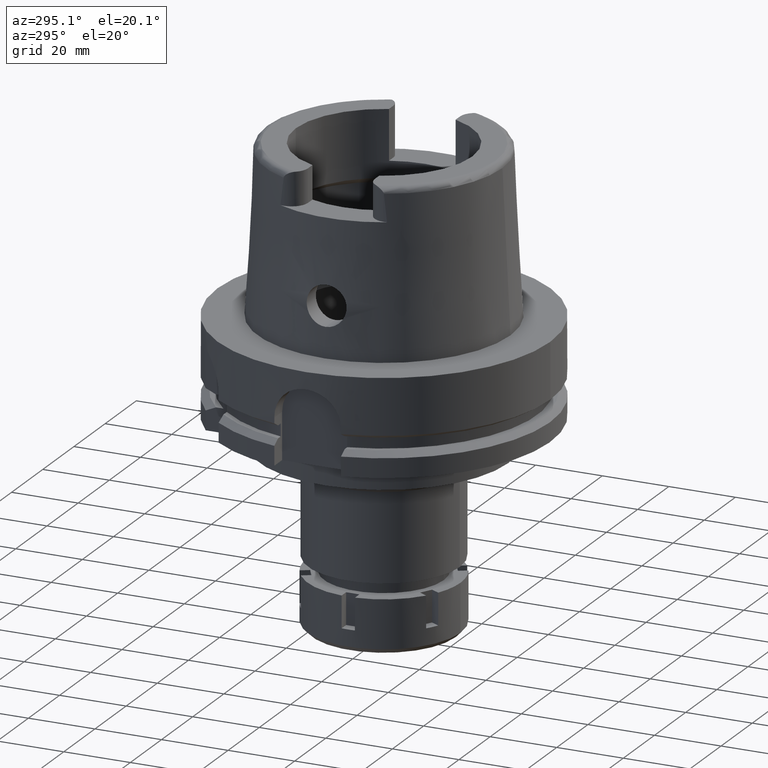
[diagram: clean part render]
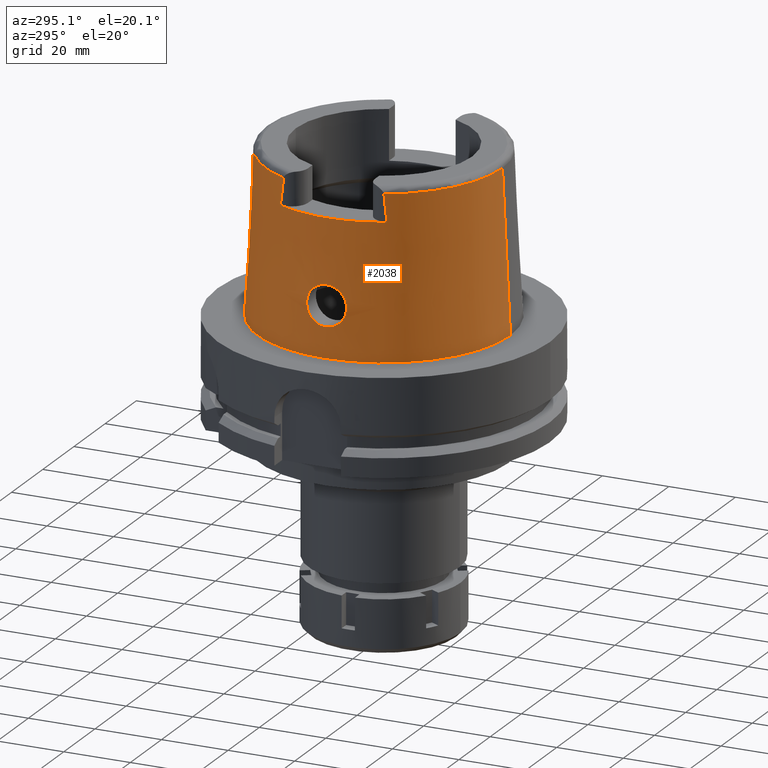
[diagram: same view with one face highlighted and labeled with its STEP entity id]
A machine part, auxiliary view. The second image highlights one B-rep face of the part: STEP entity #2038.
In plain terms, the highlighted conical surface has half-angle 2.862 deg.
Its self-contained STEP definition (entity closure, byte-faithful):
#6 = CARTESIAN_POINT ( 'NONE',  ( -36.71877591530809326, -5.556018479536274590, 17.26510443153633645 ) ) ;
#39 = CARTESIAN_POINT ( 'NONE',  ( -37.22769001349152518, -4.202483874487800364, 10.71757276452399843 ) ) ;
#45 = CARTESIAN_POINT ( 'NONE',  ( -32.24999999999000266, 15.99793480980999938, 40.00000000000000000 ) ) ;
#73 = EDGE_CURVE ( 'NONE', #1980, #1175, #1230, .T. ) ;
#105 = CARTESIAN_POINT ( 'NONE',  ( -36.71940090993184924, 5.534225256131923842, 17.31786715726130765 ) ) ;
#133 = CARTESIAN_POINT ( 'NONE',  ( -36.80220034301677146, 4.120520436186791535, 19.36182650419087992 ) ) ;
#140 = EDGE_CURVE ( 'NONE', #1175, #1980, #5866, .T. ) ;
#166 = CARTESIAN_POINT ( 'NONE',  ( -36.85061446757075743, 3.323974769132514773, 19.99513187085343091 ) ) ;
#193 = CARTESIAN_POINT ( 'NONE',  ( -36.94215372555600396, 5.576661568308895589, 12.78614643219742142 ) ) ;
#219 = CARTESIAN_POINT ( 'NONE',  ( -36.71950530839042415, 5.530809660569642183, 17.32599642025721920 ) ) ;
#240 = CARTESIAN_POINT ( 'NONE',  ( -32.25000136840999687, 15.06443226364999965, 48.09991937821000363 ) ) ;
#249 = CARTESIAN_POINT ( 'NONE',  ( -37.01637978225305403, 5.287016351401201852, 12.16149166901215928 ) ) ;
#311 = CARTESIAN_POINT ( 'NONE',  ( -37.07128758506892297, 5.042171245306825256, 11.74781501929762584 ) ) ;
#345 = CARTESIAN_POINT ( 'NONE',  ( -37.31794597881081188, 3.612345557539282659, 10.19261230537456697 ) ) ;
#362 = EDGE_CURVE ( 'NONE', #1772, #2857, #4245, .T. ) ;
#376 = CARTESIAN_POINT ( 'NONE',  ( -37.04596361758719780, 5.158063539129197572, 11.93451700471799981 ) ) ;
#409 = CARTESIAN_POINT ( 'NONE',  ( -37.22599246841644316, -4.212936030671541765, 10.72785490134685205 ) ) ;
#435 = CARTESIAN_POINT ( 'NONE',  ( -36.76666022327953698, -5.999757555611351378, 14.94147197359077772 ) ) ;
#467 = CARTESIAN_POINT ( 'NONE',  ( -36.71805141915527315, -5.584094119582716509, 17.19522082418419373 ) ) ;
#497 = CARTESIAN_POINT ( 'NONE',  ( -36.81081821775555341, -3.980731981830091470, 19.49363295382309502 ) ) ;
#518 = CIRCLE ( 'NONE', #1125, 35.59494289391000166 ) ;
#524 = CARTESIAN_POINT ( 'NONE',  ( -36.76836078311219325, -4.640621917574239141, 18.80473310482546268 ) ) ;
#532 = CARTESIAN_POINT ( 'NONE',  ( -36.94595053172387367, 0.7392507761614157680, 20.96716880237240233 ) ) ;
#537 = EDGE_CURVE ( 'NONE', #928, #558, #2404, .T. ) ;
#558 = VERTEX_POINT ( 'NONE', #5274 ) ;
#560 = CARTESIAN_POINT ( 'NONE',  ( -36.93364185750331075, -1.521987419331389590, 20.86575521343720752 ) ) ;
#568 = CARTESIAN_POINT ( 'NONE',  ( -36.90335691258076878, 2.249091460713585011, 20.56254351953722193 ) ) ;
#584 = VECTOR ( 'NONE', #1356, 1000.000000000000227 ) ;
#597 = CARTESIAN_POINT ( 'NONE',  ( -36.92881781482282122, 1.511081217388786202, 20.81016492526160278 ) ) ;
#625 = CARTESIAN_POINT ( 'NONE',  ( -36.92045113884029206, 5.652672191472771779, 12.98754703251336728 ) ) ;
#656 = CARTESIAN_POINT ( 'NONE',  ( -36.72222499115520833, 5.452408707580252312, 17.50463453709382478 ) ) ;
#681 = CARTESIAN_POINT ( 'NONE',  ( -36.86754109588863315, -3.025826857960945748, 20.18496277906425718 ) ) ;
#688 = CARTESIAN_POINT ( 'NONE',  ( -36.91974755293403376, 1.803626780359447457, 20.72339725715780645 ) ) ;
#718 = CARTESIAN_POINT ( 'NONE',  ( -37.45621620133924523, 2.303575478182027680, 9.459810158579950112 ) ) ;
#749 = CARTESIAN_POINT ( 'NONE',  ( -37.48380483905778959, -1.941892671585959462, 9.321388531534887889 ) ) ;
#781 = CARTESIAN_POINT ( 'NONE',  ( -37.55000165825000380, 1.571614468376999917E-13, 9.000000000000000000 ) ) ;
#815 = CARTESIAN_POINT ( 'NONE',  ( -37.51963179138046200, -1.323757406867826836, 9.144631324572170428 ) ) ;
#831 = FACE_OUTER_BOUND ( 'NONE', #2781, .T. ) ;
#881 = CARTESIAN_POINT ( 'NONE',  ( -37.20168319516631072, -4.361810434371832024, 10.87536770455288604 ) ) ;
#913 = CARTESIAN_POINT ( 'NONE',  ( -37.28862742251199336, -3.801792891795896967, 10.35693965760819601 ) ) ;
#928 = VERTEX_POINT ( 'NONE', #5611 ) ;
#942 = CARTESIAN_POINT ( 'NONE',  ( -36.82363111639052988, -5.928074679737712849, 14.05293152788056332 ) ) ;
#971 = CARTESIAN_POINT ( 'NONE',  ( -36.78356802939993742, -4.404063719291655410, 19.07551879910860038 ) ) ;
#1003 = CARTESIAN_POINT ( 'NONE',  ( -37.13309089327508161, -4.742405687941488424, 11.31929760391992090 ) ) ;
#1010 = CARTESIAN_POINT ( 'NONE',  ( -32.24999876011999334, -15.99794043148000000, 40.00000000000000000 ) ) ;
#1041 = CARTESIAN_POINT ( 'NONE',  ( -36.88795973163654196, 2.606477671416162156, 20.40788284496053251 ) ) ;
#1075 = CARTESIAN_POINT ( 'NONE',  ( -36.75772270391036756, 5.998830808039315343, 15.12079816113778641 ) ) ;
#1101 = CARTESIAN_POINT ( 'NONE',  ( -36.90530372639234713, 5.703403103098229288, 13.13402238867908167 ) ) ;
#1125 = AXIS2_PLACEMENT_3D ( 'NONE', #1419, #3315, #2859 ) ;
#1131 = CARTESIAN_POINT ( 'NONE',  ( -36.90844121953796275, 2.121042726762362829, 20.61301729786069004 ) ) ;
#1160 = CARTESIAN_POINT ( 'NONE',  ( -36.73755001196761327, 5.133457173154321929, 18.11219717281846542 ) ) ;
#1172 = CARTESIAN_POINT ( 'NONE',  ( 0.0000000000000000000, 35.59494289391000166, 48.09987853799000135 ) ) ;
#1175 = VERTEX_POINT ( 'NONE', #6108 ) ;
#1180 = DIRECTION ( 'NONE',  ( 0.0000000000000000000, 0.0000000000000000000, -1.000000000000000000 ) ) ;
#1187 = CARTESIAN_POINT ( 'NONE',  ( -37.07641983153887111, 5.018085826717578968, 11.71078039413635530 ) ) ;
#1214 = CARTESIAN_POINT ( 'NONE',  ( 0.0000000000000000000, 0.0000000000000000000, 48.09987853799000135 ) ) ;
#1218 = ORIENTED_EDGE ( 'NONE', *, *, #362, .T. ) ;
#1219 = CARTESIAN_POINT ( 'NONE',  ( -37.54240919153262013, -0.7519272171428393881, 9.034657641862015254 ) ) ;
#1230 = B_SPLINE_CURVE_WITH_KNOTS ( 'NONE', 3,
 ( #3817, #5260, #532, #2455, #597, #688, #2485, #1131, #1540, #568, #4396, #2045, #3933, #3436, #1041, #1635, #5878, #3405, #2013, #2541, #2571, #3500, #166, #4426, #4863, #3469, #3902, #133, #5817, #2107, #4833, #2078, #3028, #3001, #1160, #3058, #5352, #4944, #656, #4370, #3527, #2515, #219, #105, #5322, #5382, #3963, #5785, #2975, #5850, #2132, #1075, #2596, #4920, #5412, #1575, #4889, #4482, #4455, #1101, #625, #5904, #1608, #193, #4025, #5291, #3994, #2945, #1798, #249, #6000, #376, #2761, #5439, #311, #5499, #1187, #2226, #6037, #3089, #4054, #2692, #3118, #1730, #2164, #2662, #4546, #345, #4974, #4577, #5534, #1255, #5565, #1316, #3618, #3215, #5067, #718, #4157, #1698, #3155 ),
 .UNSPECIFIED., .F., .F.,
 ( 4, 2, 2, 1, 1, 1, 1, 2, 2, 2, 2, 1, 1, 2, 2, 2, 1, 1, 1, 2, 2, 2, 2, 2, 1, 1, 2, 2, 2, 2, 1, 1, 2, 2, 2, 2, 2, 1, 1, 1, 2, 2, 2, 2, 1, 1, 2, 2, 2, 1, 1, 1, 2, 2, 2, 2, 2, 1, 1, 2, 2, 4 ),
 ( 0.0000000000000000000, 0.06249999999999100719, 0.09374999999998649691, 0.1093749999999842487, 0.1171874999999831662, 0.1210937499999826389, 0.1230468749999822503, 0.1240234374999820144, 0.1249999999999817785, 0.1562499999999727718, 0.1718749999999683864, 0.1796874999999663325, 0.1835937499999654166, 0.1855468749999651112, 0.1874999999999648059, 0.2187499999999592271, 0.2343749999999563405, 0.2421874999999547307, 0.2460937499999539813, 0.2480468749999536759, 0.2499999999999533706, 0.3124999999999402145, 0.3437499999999336087, 0.3593749999999303335, 0.3671874999999288347, 0.3710937499999281131, 0.3730468749999280575, 0.3749999999999280020, 0.4374999999999288347, 0.4687499999999295008, 0.4843749999999298894, 0.4921874999999301670, 0.4960937499999303335, 0.4999999999999305000, 0.5624999999999339417, 0.5937499999999358291, 0.6093749999999367173, 0.6171874999999371614, 0.6210937499999374944, 0.6230468749999377165, 0.6240234374999377165, 0.6249999999999378275, 0.6562499999999428235, 0.6718749999999453770, 0.6796874999999467093, 0.6835937499999473754, 0.6855468749999478195, 0.6874999999999481526, 0.7187499999999557021, 0.7343749999999594769, 0.7421874999999613642, 0.7460937499999623634, 0.7480468749999629186, 0.7499999999999633626, 0.8124999999999730216, 0.8437499999999776845, 0.8593749999999801270, 0.8671874999999812372, 0.8710937499999817923, 0.8730468749999822364, 0.8749999999999825695, 1.000000000000000000 ),
 .UNSPECIFIED. ) ;
#1247 = CARTESIAN_POINT ( 'NONE',  ( 0.0000000000000000000, 0.0000000000000000000, 40.00000000000000000 ) ) ;
#1255 = CARTESIAN_POINT ( 'NONE',  ( -37.42898963835768456, 2.613640524911335028, 9.598437071932590214 ) ) ;
#1285 = CARTESIAN_POINT ( 'NONE',  ( -37.55000165825001091, -0.3717897913749180772, 8.999999999999991118 ) ) ;
#1316 = CARTESIAN_POINT ( 'NONE',  ( -37.44542732564330834, 2.431495883758649779, 9.514457085874241216 ) ) ;
#1318 = EDGE_CURVE ( 'NONE', #1817, #4762, #518, .T. ) ;
#1355 = CARTESIAN_POINT ( 'NONE',  ( -37.17892230854425861, -4.493551449338728077, 11.01929940718028611 ) ) ;
#1356 = DIRECTION ( 'NONE',  ( -5.154182075159067383E-05, 0.04993927430816067631, -0.9987522546783135224 ) ) ;
#1384 = CARTESIAN_POINT ( 'NONE',  ( -37.25742475283490052, -4.013357196009274652, 10.53949088016138624 ) ) ;
#1399 = EDGE_CURVE ( 'NONE', #1817, #2857, #2480, .T. ) ;
#1415 = CARTESIAN_POINT ( 'NONE',  ( -37.27643627799846371, -3.886585924757955279, 10.42756517671766758 ) ) ;
#1419 = CARTESIAN_POINT ( 'NONE',  ( 0.0000000000000000000, 0.0000000000000000000, 48.09987853799000135 ) ) ;
#1441 = CARTESIAN_POINT ( 'NONE',  ( -36.73016144847014175, -5.271540747400369931, 17.89199016426358924 ) ) ;
#1470 = CARTESIAN_POINT ( 'NONE',  ( -37.23023066853856733, -4.186797666372329196, 10.70219825598511676 ) ) ;
#1540 = CARTESIAN_POINT ( 'NONE',  ( -36.90507923878578822, 2.206425074469046343, 20.57968589077106003 ) ) ;
#1575 = CARTESIAN_POINT ( 'NONE',  ( -36.80459507894979510, 5.970906228167351948, 14.29268217093747317 ) ) ;
#1603 = AXIS2_PLACEMENT_3D ( 'NONE', #1214, #2222, #1759 ) ;
#1608 = CARTESIAN_POINT ( 'NONE',  ( -36.93745037037131596, 5.593506599061787377, 12.82885141091628434 ) ) ;
#1635 = CARTESIAN_POINT ( 'NONE',  ( -36.87506635199213889, 2.868695183318607178, 20.27070380730191701 ) ) ;
#1665 = CARTESIAN_POINT ( 'NONE',  ( -37.46078090617286449, -2.247755046254198419, 9.436939945325521606 ) ) ;
#1698 = CARTESIAN_POINT ( 'NONE',  ( -37.55000165825000380, 0.7494083141441048035, 9.000000000000019540 ) ) ;
#1730 = CARTESIAN_POINT ( 'NONE',  ( -37.21073503841529373, 4.304683878512597595, 10.82030531187115940 ) ) ;
#1759 = DIRECTION ( 'NONE',  ( 0.0000000000000000000, -1.000000000000000000, 0.0000000000000000000 ) ) ;
#1766 = CARTESIAN_POINT ( 'NONE',  ( -37.51014120798372176, -1.514611801155645754, 9.190934914957249902 ) ) ;
#1772 = VERTEX_POINT ( 'NONE', #5334 ) ;
#1798 = CARTESIAN_POINT ( 'NONE',  ( -36.98364247756470036, 5.422293348189284323, 12.42368079880104048 ) ) ;
#1817 = VERTEX_POINT ( 'NONE', #2582 ) ;
#1828 = CARTESIAN_POINT ( 'NONE',  ( -36.78801205991238277, -4.335545704490326280, 19.14782797083330479 ) ) ;
#1858 = CARTESIAN_POINT ( 'NONE',  ( -36.82488678549455585, -3.752762364299033759, 19.68257575441264962 ) ) ;
#1884 = CARTESIAN_POINT ( 'NONE',  ( -37.23611922568932187, -4.150142964833608339, 10.66666443811991094 ) ) ;
#1916 = CARTESIAN_POINT ( 'NONE',  ( -36.72231774689391415, -5.429982949150325311, 17.57243770329887056 ) ) ;
#1945 = CARTESIAN_POINT ( 'NONE',  ( -37.04112384507246247, -5.179272713562290242, 11.96449921162192176 ) ) ;
#1964 = VECTOR ( 'NONE', #3267, 1000.000000000000227 ) ;
#1965 = CARTESIAN_POINT ( 'NONE',  ( -0.002482252536761000127, -35.59494263424999616, 48.09987853799000135 ) ) ;
#1980 = VERTEX_POINT ( 'NONE', #2743 ) ;
#2013 = CARTESIAN_POINT ( 'NONE',  ( -36.85936350174252141, 3.167304243517872653, 20.09643506370189669 ) ) ;
#2038 = ADVANCED_FACE ( 'NONE', ( #831, #4168 ), #3421, .T. ) ;
#2045 = CARTESIAN_POINT ( 'NONE',  ( -36.90210994840835212, 2.279555752169266203, 20.55010530646170608 ) ) ;
#2052 = ORIENTED_EDGE ( 'NONE', *, *, #140, .F. ) ;
#2072 = CARTESIAN_POINT ( 'NONE',  ( -36.94998175923000616, 0.0000000000000000000, 21.00000000000000000 ) ) ;
#2078 = CARTESIAN_POINT ( 'NONE',  ( -36.79465058467539507, 4.233773584020785741, 19.25151152369881302 ) ) ;
#2107 = CARTESIAN_POINT ( 'NONE',  ( -36.79633939545476551, 4.208648113682985858, 19.27638068093073898 ) ) ;
#2132 = CARTESIAN_POINT ( 'NONE',  ( -36.75437886499670981, 5.997255500159512920, 15.19204677513777213 ) ) ;
#2154 = CARTESIAN_POINT ( 'NONE',  ( -32.25000000000000000, 15.37357338024540176, 45.48332198547253569 ) ) ;
#2163 = AXIS2_PLACEMENT_3D ( 'NONE', #1247, #1180, #4968 ) ;
#2164 = CARTESIAN_POINT ( 'NONE',  ( -37.21365251783289096, 4.287528667260099624, 10.80270933728416338 ) ) ;
#2222 = DIRECTION ( 'NONE',  ( 0.0000000000000000000, 0.0000000000000000000, -1.000000000000000000 ) ) ;
#2226 = CARTESIAN_POINT ( 'NONE',  ( -37.10073611263641169, 4.903216773242706772, 11.53631466073877121 ) ) ;
#2262 = CARTESIAN_POINT ( 'NONE',  ( -37.46218781101624273, -2.230182556896489920, 9.429850549638434387 ) ) ;
#2325 = CARTESIAN_POINT ( 'NONE',  ( -36.83917086041914501, -3.517209958915936685, 19.86199292097241909 ) ) ;
#2352 = CARTESIAN_POINT ( 'NONE',  ( -36.73140089814380360, -5.965317404763452735, 15.75378961743103012 ) ) ;
#2382 = CARTESIAN_POINT ( 'NONE',  ( -36.95696980649664454, -5.522470422716669880, 12.65414452249947530 ) ) ;
#2398 = DIRECTION ( 'NONE',  ( 0.0000000000000000000, 0.0000000000000000000, -1.000000000000000000 ) ) ;
#2404 = LINE ( 'NONE', #1965, #1964 ) ;
#2413 = CARTESIAN_POINT ( 'NONE',  ( -36.71845968654510273, -5.567812068926223823, 17.23601086441984265 ) ) ;
#2438 = CARTESIAN_POINT ( 'NONE',  ( -32.24999491821000674, -15.06448488039999845, 48.09973200667999294 ) ) ;
#2446 = CARTESIAN_POINT ( 'NONE',  ( -36.77281608180236816, -4.570892891388650625, 18.88835092093629342 ) ) ;
#2455 = CARTESIAN_POINT ( 'NONE',  ( -36.93385684920548329, 1.316707644048417336, 20.85701970174421049 ) ) ;
#2475 = ORIENTED_EDGE ( 'NONE', *, *, #537, .F. ) ;
#2480 = B_SPLINE_CURVE_WITH_KNOTS ( 'NONE', 3,
 ( #240, #2154, #5929, #45 ),
 .UNSPECIFIED., .F., .F.,
 ( 4, 4 ),
 ( 0.0000000000000000000, 1.000000000000000000 ),
 .UNSPECIFIED. ) ;
#2485 = CARTESIAN_POINT ( 'NONE',  ( -36.91483449441095388, 1.950141087492386571, 20.67589449656378875 ) ) ;
#2504 = ORIENTED_EDGE ( 'NONE', *, *, #6101, .T. ) ;
#2505 = VERTEX_POINT ( 'NONE', #4258 ) ;
#2515 = CARTESIAN_POINT ( 'NONE',  ( -36.71976520832231472, 5.522465365645029323, 17.34573893128603572 ) ) ;
#2541 = CARTESIAN_POINT ( 'NONE',  ( -36.85476310805488964, 3.250344507869894262, 20.04347860560532268 ) ) ;
#2571 = CARTESIAN_POINT ( 'NONE',  ( -36.85274998097106902, 3.286191580018521297, 20.02007474539052012 ) ) ;
#2582 = CARTESIAN_POINT ( 'NONE',  ( -32.25000136840999687, 15.06443226364999965, 48.09991937821000363 ) ) ;
#2596 = CARTESIAN_POINT ( 'NONE',  ( -36.75999784862354858, 5.999598717123132197, 15.07333820771160759 ) ) ;
#2613 = ORIENTED_EDGE ( 'NONE', *, *, #5522, .F. ) ;
#2662 = CARTESIAN_POINT ( 'NONE',  ( -37.21487712761832967, 4.280311240811192519, 10.79534316612672562 ) ) ;
#2692 = CARTESIAN_POINT ( 'NONE',  ( -37.19616182644338664, 4.389618740546705311, 10.90909850725337904 ) ) ;
#2707 = B_SPLINE_CURVE_WITH_KNOTS ( 'NONE', 3,
 ( #1010, #4798, #5414, #4428 ),
 .UNSPECIFIED., .F., .F.,
 ( 4, 4 ),
 ( 0.0000000000000000000, 1.000000000000000000 ),
 .UNSPECIFIED. ) ;
#2725 = CARTESIAN_POINT ( 'NONE',  ( -37.47176366137318126, -2.106908530001751600, 9.381693194714397777 ) ) ;
#2743 = CARTESIAN_POINT ( 'NONE',  ( -36.94998175923000616, 0.0000000000000000000, 21.00000000000000000 ) ) ;
#2761 = CARTESIAN_POINT ( 'NONE',  ( -37.05522735692827752, 5.116452148637672614, 11.86516183278199854 ) ) ;
#2781 = EDGE_LOOP ( 'NONE', ( #5122, #6136, #5488, #5893, #2475, #2504, #2613, #1218 ) ) ;
#2791 = CARTESIAN_POINT ( 'NONE',  ( -36.75582634480705480, -4.838976026112407069, 18.55383935230758752 ) ) ;
#2822 = CARTESIAN_POINT ( 'NONE',  ( -37.22499570032609739, -4.219054156933702338, 10.73389883939689682 ) ) ;
#2851 = CARTESIAN_POINT ( 'NONE',  ( -36.71774298079083820, -5.807162270458347209, 16.52191190075219041 ) ) ;
#2857 = VERTEX_POINT ( 'NONE', #5661 ) ;
#2859 = DIRECTION ( 'NONE',  ( -0.9060276961631030801, 0.4232183996300014628, 0.0000000000000000000 ) ) ;
#2868 = CARTESIAN_POINT ( 'NONE',  ( 0.0000000000000000000, 0.0000000000000000000, 24.04993926899999934 ) ) ;
#2878 = CARTESIAN_POINT ( 'NONE',  ( -36.78995561900045175, -4.305632241956329764, 19.17872438452805284 ) ) ;
#2907 = CARTESIAN_POINT ( 'NONE',  ( -36.71651241039844393, -5.722259597731362391, 16.80709226755106300 ) ) ;
#2945 = CARTESIAN_POINT ( 'NONE',  ( -36.96412035586634204, 5.496942102825411069, 12.58933776426189155 ) ) ;
#2975 = CARTESIAN_POINT ( 'NONE',  ( -36.74161085027466100, 5.979735270590361473, 15.50200795708267876 ) ) ;
#3001 = CARTESIAN_POINT ( 'NONE',  ( -36.75623394145417677, 4.813521845685437839, 18.60314065858440102 ) ) ;
#3028 = CARTESIAN_POINT ( 'NONE',  ( -36.77297250300300391, 4.554503181978383886, 18.93065307384783580 ) ) ;
#3053 = CARTESIAN_POINT ( 'NONE',  ( -36.88056870549152677, -2.763622703825586502, 20.32656140014922386 ) ) ;
#3058 = CARTESIAN_POINT ( 'NONE',  ( -36.73239268761152942, 5.228736780676443097, 17.94852604011366992 ) ) ;
#3089 = CARTESIAN_POINT ( 'NONE',  ( -37.15841945810983304, 4.601470134555531999, 11.14822958700788469 ) ) ;
#3118 = CARTESIAN_POINT ( 'NONE',  ( -37.20636019204200551, 4.330335617445259189, 10.84677832078846116 ) ) ;
#3155 = CARTESIAN_POINT ( 'NONE',  ( -37.55000165825000380, 1.571614468376999917E-13, 9.000000000000000000 ) ) ;
#3179 = CIRCLE ( 'NONE', #1603, 35.59494289391000166 ) ;
#3184 = CARTESIAN_POINT ( 'NONE',  ( -37.45926139962711687, -2.266617115029477159, 9.444599828263198660 ) ) ;
#3215 = CARTESIAN_POINT ( 'NONE',  ( -37.45390008656802650, 2.331530767935365844, 9.471520933086953420 ) ) ;
#3248 = CARTESIAN_POINT ( 'NONE',  ( -36.76554357006025242, -5.999932610905607255, 14.96291777918953869 ) ) ;
#3267 = DIRECTION ( 'NONE',  ( 5.154182075151068004E-05, -0.04993927430816067631, -0.9987522546783135224 ) ) ;
#3279 = CARTESIAN_POINT ( 'NONE',  ( -37.24773778815480796, -4.076637338374292874, 10.59695008879029032 ) ) ;
#3310 = CARTESIAN_POINT ( 'NONE',  ( -36.90932948212860509, -5.698631550023171677, 13.07405187541388614 ) ) ;
#3315 = DIRECTION ( 'NONE',  ( 0.0000000000000000000, 0.0000000000000000000, -1.000000000000000000 ) ) ;
#3337 = CARTESIAN_POINT ( 'NONE',  ( -36.74857866295745623, -4.956755520932508929, 18.38655605979437979 ) ) ;
#3365 = CARTESIAN_POINT ( 'NONE',  ( -36.77668005513971394, -5.995327149810650624, 14.75877497766930269 ) ) ;
#3405 = CARTESIAN_POINT ( 'NONE',  ( -36.86314057717537906, 3.097237203428095498, 20.13906557118872698 ) ) ;
#3421 = CONICAL_SURFACE ( 'NONE', #4991, 36.79747973821000073, 0.04996004983832824653 ) ;
#3436 = CARTESIAN_POINT ( 'NONE',  ( -36.89537402628638318, 2.442420777058891268, 20.48280623584296833 ) ) ;
#3469 = CARTESIAN_POINT ( 'NONE',  ( -36.81741059695009000, 3.883075987110801819, 19.57508075920108226 ) ) ;
#3500 = CARTESIAN_POINT ( 'NONE',  ( -36.85139866740648529, 3.310144872864176246, 20.00431278704111193 ) ) ;
#3527 = CARTESIAN_POINT ( 'NONE',  ( -36.72016760492494569, 5.509841488610954130, 17.37538563332561026 ) ) ;
#3556 = CARTESIAN_POINT ( 'NONE',  ( -37.43525417055296600, -2.562668826412764389, 9.565672979290946287 ) ) ;
#3618 = CARTESIAN_POINT ( 'NONE',  ( -37.45140167478894710, 2.361433436138808073, 9.484163266251119495 ) ) ;
#3654 = CARTESIAN_POINT ( 'NONE',  ( -37.45983926235147266, -2.259466256596780021, 9.441686212962011382 ) ) ;
#3686 = CARTESIAN_POINT ( 'NONE',  ( -37.46543166276317294, -2.189141127411947885, 9.413518544502212038 ) ) ;
#3715 = CARTESIAN_POINT ( 'NONE',  ( -36.79125998607754866, -4.285567461021250857, 19.19929970612470527 ) ) ;
#3751 = CARTESIAN_POINT ( 'NONE',  ( -36.78483293074322802, -5.988683976702792400, 14.62024638803064214 ) ) ;
#3779 = CARTESIAN_POINT ( 'NONE',  ( -37.34523429472025668, -3.378832880988529297, 10.03794051555685130 ) ) ;
#3809 = CARTESIAN_POINT ( 'NONE',  ( -37.32375123926614435, -3.547736333630591155, 10.15643508892030056 ) ) ;
#3817 = CARTESIAN_POINT ( 'NONE',  ( -36.94998175923000616, 0.0000000000000000000, 21.00000000000000000 ) ) ;
#3842 = CARTESIAN_POINT ( 'NONE',  ( -36.79068062669448125, -5.982070062026656920, 14.52694746837815565 ) ) ;
#3902 = CARTESIAN_POINT ( 'NONE',  ( -36.81039724332124763, 3.994627934154281412, 19.47881986776948438 ) ) ;
#3927 = CARTESIAN_POINT ( 'NONE',  ( -36.88691759352882826, -2.630018460241392297, 20.39450608175703650 ) ) ;
#3933 = CARTESIAN_POINT ( 'NONE',  ( -36.90180181049617403, 2.287029533710632556, 20.54702820187145207 ) ) ;
#3957 = CARTESIAN_POINT ( 'NONE',  ( -36.89702493789413040, -2.400488690949473369, 20.49893584423757886 ) ) ;
#3963 = CARTESIAN_POINT ( 'NONE',  ( -36.72675743171452467, 5.922496153025326393, 15.98087008227419226 ) ) ;
#3994 = CARTESIAN_POINT ( 'NONE',  ( -36.94636287683670872, 5.561451265527328047, 12.74827025652164281 ) ) ;
#4025 = CARTESIAN_POINT ( 'NONE',  ( -36.94418356040980456, 5.569339437659922787, 12.76784824935957374 ) ) ;
#4054 = CARTESIAN_POINT ( 'NONE',  ( -37.17580353233528712, 4.505874425635838065, 11.03590996745755604 ) ) ;
#4157 = CARTESIAN_POINT ( 'NONE',  ( -37.51906212607325131, 1.535544615333502394, 9.142385658720581176 ) ) ;
#4168 = FACE_BOUND ( 'NONE', #6068, .T. ) ;
#4214 = CARTESIAN_POINT ( 'NONE',  ( -36.77991475872030236, -4.460619731812196065, 19.01322255617490598 ) ) ;
#4244 = CARTESIAN_POINT ( 'NONE',  ( -37.06371576728736272, -5.077318031182130653, 11.79713454993249755 ) ) ;
#4245 = CIRCLE ( 'NONE', #2163, 35.99995025243999436 ) ;
#4258 = CARTESIAN_POINT ( 'NONE',  ( 0.0000000000000000000, 38.00001658251999714, 1.023181539494999863E-12 ) ) ;
#4275 = CARTESIAN_POINT ( 'NONE',  ( -36.71864768668298495, -5.560747459927732450, 17.25347001702295913 ) ) ;
#4304 = CARTESIAN_POINT ( 'NONE',  ( -36.82961940951135205, -3.675218179884211622, 19.74368131190660236 ) ) ;
#4335 = CARTESIAN_POINT ( 'NONE',  ( -36.89900380326976403, -2.353983122001504835, 20.51900397134747678 ) ) ;
#4370 = CARTESIAN_POINT ( 'NONE',  ( -36.72119435726433068, 5.479627520660090845, 17.44478563885319744 ) ) ;
#4396 = CARTESIAN_POINT ( 'NONE',  ( -36.90260991510099586, 2.267370910680820639, 20.55509428303973607 ) ) ;
#4426 = CARTESIAN_POINT ( 'NONE',  ( -36.84073819870841504, 3.497462575008328578, 19.87917286391861893 ) ) ;
#4428 = CARTESIAN_POINT ( 'NONE',  ( -32.24999491821000674, -15.06448488039999845, 48.09973200667999294 ) ) ;
#4455 = CARTESIAN_POINT ( 'NONE',  ( -36.89560683676315733, 5.734380157950695001, 13.23162129802155995 ) ) ;
#4481 = VERTEX_POINT ( 'NONE', #2438 ) ;
#4482 = CARTESIAN_POINT ( 'NONE',  ( -36.86772032388385867, 5.819088005477064840, 13.52374429635263020 ) ) ;
#4546 = CARTESIAN_POINT ( 'NONE',  ( -37.27078712633531410, 3.949694111927336326, 10.46037368426367742 ) ) ;
#4577 = CARTESIAN_POINT ( 'NONE',  ( -37.39638565008546323, 2.942662811656695077, 9.767858821001178526 ) ) ;
#4608 = CARTESIAN_POINT ( 'NONE',  ( -37.40388499393665711, -2.881408416844821296, 9.722531914398560460 ) ) ;
#4678 = CARTESIAN_POINT ( 'NONE',  ( -36.79201270507834920, -4.273995460226177379, 19.21107053016323718 ) ) ;
#4706 = CARTESIAN_POINT ( 'NONE',  ( -36.76906851431904499, -5.999142209080057242, 14.89603360530964515 ) ) ;
#4734 = CARTESIAN_POINT ( 'NONE',  ( -36.71735648276983000, -5.615850056883983754, 17.11343825004308883 ) ) ;
#4762 = VERTEX_POINT ( 'NONE', #1172 ) ;
#4764 = CARTESIAN_POINT ( 'NONE',  ( -36.80161157834466934, -4.126490429148349293, 19.36016524609213008 ) ) ;
#4790 = CARTESIAN_POINT ( 'NONE',  ( -36.97276273951042924, -5.462600521980873758, 12.51717603964011083 ) ) ;
#4798 = CARTESIAN_POINT ( 'NONE',  ( -32.25000000000000000, -15.68478779189530492, 42.78313257773641709 ) ) ;
#4822 = CARTESIAN_POINT ( 'NONE',  ( -36.89994081019199257, -2.331729050480262799, 20.52844880661314519 ) ) ;
#4833 = CARTESIAN_POINT ( 'NONE',  ( -36.79516666512505907, 4.226110185645855388, 19.25912471897987288 ) ) ;
#4863 = CARTESIAN_POINT ( 'NONE',  ( -36.83142055631741130, 3.655382036405197876, 19.76201159883929037 ) ) ;
#4889 = CARTESIAN_POINT ( 'NONE',  ( -36.85073485664204185, 5.864589259561292067, 13.71758129269037596 ) ) ;
#4920 = CARTESIAN_POINT ( 'NONE',  ( -36.76122215142792982, 5.999847038693494561, 15.04835133128675118 ) ) ;
#4944 = CARTESIAN_POINT ( 'NONE',  ( -36.72448700621310991, 5.396153557781826926, 17.62475642611635607 ) ) ;
#4949 = CIRCLE ( 'NONE', #5846, 38.00001658251999714 ) ;
#4968 = DIRECTION ( 'NONE',  ( -0.8958345712659759874, -0.4443876921390880197, 0.0000000000000000000 ) ) ;
#4974 = CARTESIAN_POINT ( 'NONE',  ( -37.37809890173980421, 3.109730675601682481, 9.864868127925110031 ) ) ;
#4991 = AXIS2_PLACEMENT_3D ( 'NONE', #2868, #2398, #5211 ) ;
#5008 = LINE ( 'NONE', #5037, #584 ) ;
#5037 = CARTESIAN_POINT ( 'NONE',  ( 0.002482252536764999965, 35.59494263424999616, 48.09987853799000135 ) ) ;
#5067 = CARTESIAN_POINT ( 'NONE',  ( -37.45555191140542917, 2.311623872272921876, 9.463167729805881834 ) ) ;
#5122 = ORIENTED_EDGE ( 'NONE', *, *, #1399, .F. ) ;
#5135 = CARTESIAN_POINT ( 'NONE',  ( -36.71885521704299293, -5.553155601779133477, 17.27211086911090732 ) ) ;
#5168 = CARTESIAN_POINT ( 'NONE',  ( -36.80946105119480194, -5.955254531686517971, 14.24454837249169437 ) ) ;
#5198 = CARTESIAN_POINT ( 'NONE',  ( -36.74490039730309121, -6.000828287707549613, 15.36751196947564857 ) ) ;
#5211 = DIRECTION ( 'NONE',  ( 0.0000000000000000000, -1.000000000000000000, 0.0000000000000000000 ) ) ;
#5224 = CARTESIAN_POINT ( 'NONE',  ( -36.77275828441875660, -5.997829371587843461, 14.82768464537184450 ) ) ;
#5253 = CARTESIAN_POINT ( 'NONE',  ( -36.72004570338193474, -5.853947848515582031, 16.33026208642881016 ) ) ;
#5260 = CARTESIAN_POINT ( 'NONE',  ( -36.94998175922999906, 0.3620252660517962462, 20.99999999999998934 ) ) ;
#5274 = CARTESIAN_POINT ( 'NONE',  ( 0.0000000000000000000, -38.00001658251999714, 6.892264536873000076E-13 ) ) ;
#5276 = ORIENTED_EDGE ( 'NONE', *, *, #73, .F. ) ;
#5291 = CARTESIAN_POINT ( 'NONE',  ( -36.94553991946862936, 5.564435122175188653, 12.75565043256081132 ) ) ;
#5315 = CARTESIAN_POINT ( 'NONE',  ( -36.89403602523512404, -2.469959581575693175, 20.46843379855629053 ) ) ;
#5322 = CARTESIAN_POINT ( 'NONE',  ( -36.71468340256864593, 5.693336767118584163, 16.93572648867309383 ) ) ;
#5334 = CARTESIAN_POINT ( 'NONE',  ( -32.24999876011999334, -15.99794043148000000, 40.00000000000000000 ) ) ;
#5352 = CARTESIAN_POINT ( 'NONE',  ( -36.72626267928655608, 5.356226398411614298, 17.70540427693631003 ) ) ;
#5382 = CARTESIAN_POINT ( 'NONE',  ( -36.71598645263213712, 5.808142147774682407, 16.55491221451398687 ) ) ;
#5406 = CARTESIAN_POINT ( 'NONE',  ( -36.94998175923002037, -0.7281971126342356992, 21.00000000000000355 ) ) ;
#5412 = CARTESIAN_POINT ( 'NONE',  ( -36.78025739253256887, 6.001494226009526756, 14.66733526188207470 ) ) ;
#5414 = CARTESIAN_POINT ( 'NONE',  ( -32.25000000000000000, -15.37363594153531032, 45.48304324662975517 ) ) ;
#5439 = CARTESIAN_POINT ( 'NONE',  ( -37.06641284743534470, 5.064914994406541915, 11.78316891780802322 ) ) ;
#5440 = DIRECTION ( 'NONE',  ( 0.0000000000000000000, 0.0000000000000000000, 1.000000000000000000 ) ) ;
#5488 = ORIENTED_EDGE ( 'NONE', *, *, #5729, .T. ) ;
#5499 = CARTESIAN_POINT ( 'NONE',  ( -37.07455540037746289, 5.026861156594295998, 11.72420010867138984 ) ) ;
#5522 = EDGE_CURVE ( 'NONE', #1772, #4481, #2707, .T. ) ;
#5524 = EDGE_CURVE ( 'NONE', #2505, #558, #4949, .T. ) ;
#5534 = CARTESIAN_POINT ( 'NONE',  ( -37.42116943365788018, 2.695473873303789958, 9.638744360379998710 ) ) ;
#5565 = CARTESIAN_POINT ( 'NONE',  ( -37.44005836067082527, 2.492022450208903006, 9.541811305708863600 ) ) ;
#5596 = CARTESIAN_POINT ( 'NONE',  ( -37.10987426264915712, -4.860205746806202320, 11.47637891087659234 ) ) ;
#5611 = CARTESIAN_POINT ( 'NONE',  ( 1.065814103639999922E-14, -35.59494289391000166, 48.09987853799000135 ) ) ;
#5627 = CARTESIAN_POINT ( 'NONE',  ( -36.84406930106628408, -3.435406042756540934, 19.92010263852402119 ) ) ;
#5658 = CARTESIAN_POINT ( 'NONE',  ( -36.96477047968546970, -5.493098315587985780, 12.58618455979397233 ) ) ;
#5661 = CARTESIAN_POINT ( 'NONE',  ( -32.24999999999000266, 15.99793480980999938, 40.00000000000000000 ) ) ;
#5686 = CARTESIAN_POINT ( 'NONE',  ( -36.95945753538962464, -5.513165240822115898, 12.63237606206487840 ) ) ;
#5717 = CARTESIAN_POINT ( 'NONE',  ( -37.00796694994915015, -5.320791420759943158, 12.22529976822881004 ) ) ;
#5729 = EDGE_CURVE ( 'NONE', #4762, #2505, #5008, .T. ) ;
#5758 = CARTESIAN_POINT ( 'NONE',  ( 0.0000000000000000000, 0.0000000000000000000, 1.023181539494999863E-12 ) ) ;
#5785 = CARTESIAN_POINT ( 'NONE',  ( -36.73181715873985809, 5.950999884036110466, 15.78903989852793721 ) ) ;
#5810 = CARTESIAN_POINT ( 'NONE',  ( -36.85841624478231182, -3.193947753721011473, 20.08295153974313152 ) ) ;
#5817 = CARTESIAN_POINT ( 'NONE',  ( -36.79809822926351615, 4.182375575311653826, 19.30218424470390914 ) ) ;
#5846 = AXIS2_PLACEMENT_3D ( 'NONE', #5758, #5440, #5851 ) ;
#5850 = CARTESIAN_POINT ( 'NONE',  ( -36.74705872129122497, 5.990600115095742417, 15.35866879530869156 ) ) ;
#5851 = DIRECTION ( 'NONE',  ( 0.0000000000000000000, 1.000000000000000000, 0.0000000000000000000 ) ) ;
#5866 = B_SPLINE_CURVE_WITH_KNOTS ( 'NONE', 3,
 ( #781, #1285, #1219, #815, #1766, #5967, #749, #2725, #3686, #2262, #1665, #3654, #3184, #3556, #4608, #3779, #3809, #913, #1415, #1384, #3279, #1884, #1470, #39, #409, #2822, #881, #1355, #1003, #5596, #4244, #1945, #5717, #6130, #4790, #5658, #5686, #2382, #3310, #6099, #942, #5168, #3842, #3751, #3365, #5224, #4706, #435, #3248, #5198, #2352, #5253, #2851, #2907, #6070, #4734, #467, #2413, #4275, #6, #5135, #1916, #1441, #3337, #2791, #524, #2446, #4214, #971, #1828, #2878, #3715, #4678, #4764, #497, #1858, #4304, #2325, #5627, #5810, #681, #3053, #3927, #5315, #3957, #4335, #4822, #560, #5406, #2072 ),
 .UNSPECIFIED., .F., .F.,
 ( 4, 2, 2, 1, 1, 1, 1, 2, 2, 2, 2, 2, 1, 1, 1, 2, 2, 2, 2, 2, 1, 1, 2, 2, 2, 2, 2, 1, 2, 2, 2, 2, 1, 1, 1, 1, 2, 2, 2, 2, 2, 1, 1, 2, 2, 2, 2, 2, 2, 1, 1, 2, 2, 4 ),
 ( 0.0000000000000000000, 0.06249999999999207578, 0.09374999999998809286, 0.1093749999999861083, 0.1171874999999850675, 0.1210937499999845679, 0.1230468749999843320, 0.1240234374999842487, 0.1249999999999841793, 0.1874999999999786005, 0.2187499999999759082, 0.2343749999999745204, 0.2421874999999739375, 0.2460937499999737987, 0.2480468749999737710, 0.2490234374999737432, 0.2499999999999737432, 0.2812499999999732436, 0.3124999999999726885, 0.3437499999999721889, 0.3593749999999718558, 0.3671874999999716338, 0.3710937499999716893, 0.3749999999999717448, 0.4374999999999738542, 0.4687499999999747424, 0.4843749999999752420, 0.4921874999999752975, 0.4960937499999754641, 0.4999999999999756861, 0.5624999999999767963, 0.5937499999999775735, 0.6093749999999780176, 0.6171874999999779066, 0.6210937499999779066, 0.6230468749999777955, 0.6240234374999777955, 0.6249999999999777955, 0.6874999999999907851, 0.7187499999999972244, 0.7343750000000005551, 0.7421875000000022204, 0.7460937500000031086, 0.7480468750000033307, 0.7500000000000034417, 0.7812500000000034417, 0.7968750000000032196, 0.8125000000000029976, 0.8437500000000025535, 0.8593750000000023315, 0.8671875000000022204, 0.8710937500000021094, 0.8750000000000021094, 1.000000000000000000 ),
 .UNSPECIFIED. ) ;
#5878 = CARTESIAN_POINT ( 'NONE',  ( -36.87047323583240654, 2.958773011327117786, 20.22083855568700983 ) ) ;
#5893 = ORIENTED_EDGE ( 'NONE', *, *, #5524, .T. ) ;
#5904 = CARTESIAN_POINT ( 'NONE',  ( -36.92817536456531258, 5.626240598352379330, 12.91429042154240747 ) ) ;
#5929 = CARTESIAN_POINT ( 'NONE',  ( -32.25000000000000000, 15.68473281597873203, 42.78334885940254395 ) ) ;
#5967 = CARTESIAN_POINT ( 'NONE',  ( -37.49305815786961205, -1.799670968684093264, 9.275403427132060230 ) ) ;
#6000 = CARTESIAN_POINT ( 'NONE',  ( -37.02786790417261642, 5.238035620423675987, 12.07182570337739946 ) ) ;
#6037 = CARTESIAN_POINT ( 'NONE',  ( -37.12373916586270894, 4.787027893091224229, 11.37742980672583570 ) ) ;
#6068 = EDGE_LOOP ( 'NONE', ( #5276, #2052 ) ) ;
#6070 = CARTESIAN_POINT ( 'NONE',  ( -36.71645300357582187, -5.676129615613473511, 16.94910757220662489 ) ) ;
#6099 = CARTESIAN_POINT ( 'NONE',  ( -36.87109065856419221, -5.815401295311804830, 13.47122919565885724 ) ) ;
#6101 = EDGE_CURVE ( 'NONE', #928, #4481, #3179, .T. ) ;
#6108 = CARTESIAN_POINT ( 'NONE',  ( -37.55000165825000380, 1.571614468376999917E-13, 9.000000000000000000 ) ) ;
#6130 = CARTESIAN_POINT ( 'NONE',  ( -36.99157124943724995, -5.388697525936151145, 12.35813510460117648 ) ) ;
#6136 = ORIENTED_EDGE ( 'NONE', *, *, #1318, .T. ) ;